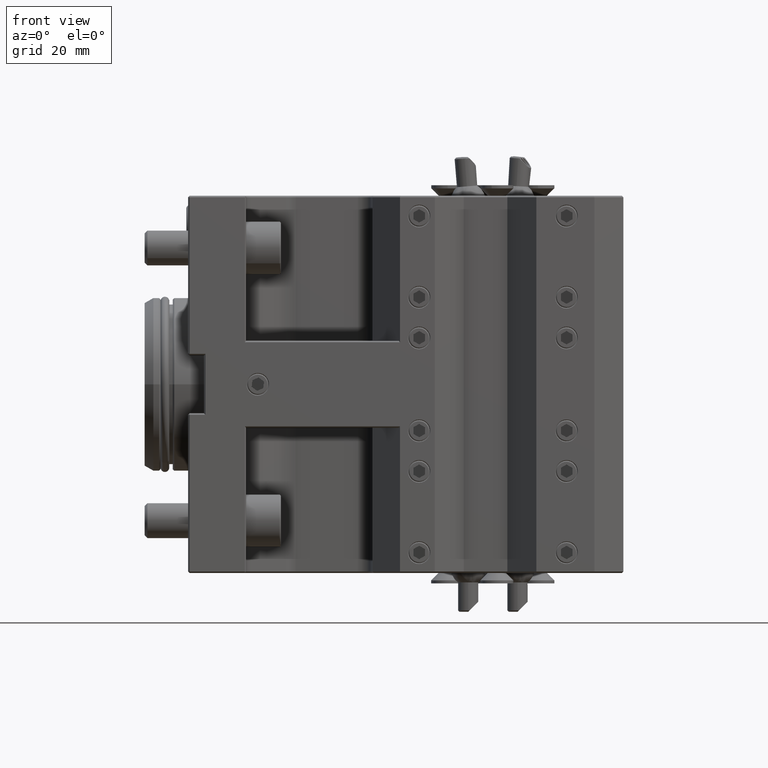
[diagram: clean part render]
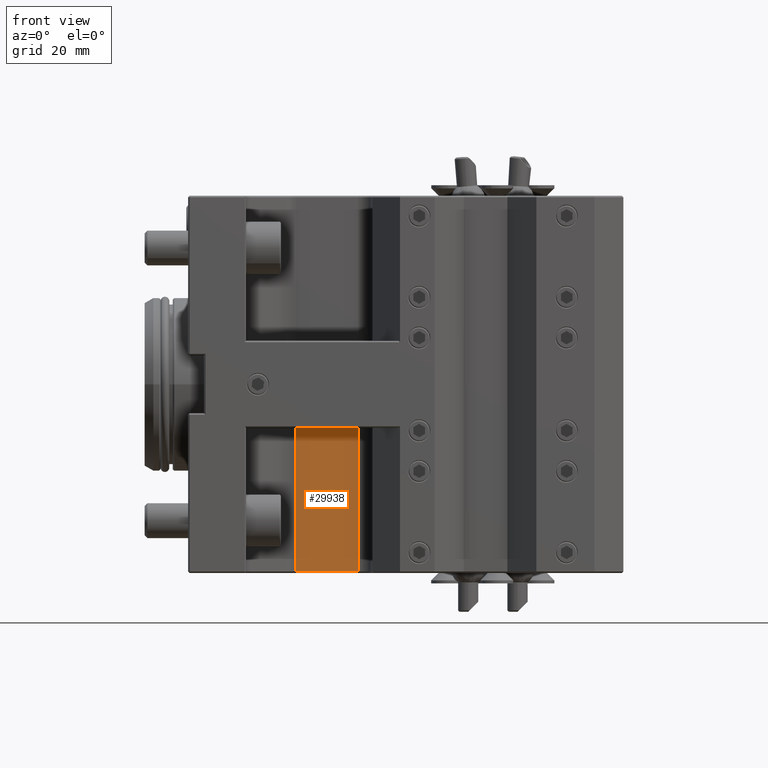
[diagram: same view with one face highlighted and labeled with its STEP entity id]
A machine part, front view. The second image highlights one B-rep face of the part: STEP entity #29938.
In plain terms, the highlighted planar face has unit normal (0, 1, -0).
Its self-contained STEP definition (entity closure, byte-faithful):
#972 = FACE_OUTER_BOUND ( 'NONE', #42390, .T. ) ;
#1022 = DIRECTION ( 'NONE',  ( 0.000000000000000000, -0.000000000000000000, -1.000000000000000000 ) ) ;
#1320 = VECTOR ( 'NONE', #1022, 1000.000000000000000 ) ;
#2898 = CARTESIAN_POINT ( 'NONE',  ( 37.07106781186544708, -16.00000000000112621, -15.00000000000000000 ) ) ;
#4082 = EDGE_CURVE ( 'NONE', #29817, #30892, #41056, .T. ) ;
#4427 = CARTESIAN_POINT ( 'NONE',  ( 58.49999999999995026, -16.00000000000120437, -15.00000000000000000 ) ) ;
#5830 = VECTOR ( 'NONE', #13603, 1000.000000000000000 ) ;
#6112 = LINE ( 'NONE', #20828, #5830 ) ;
#6330 = ORIENTED_EDGE ( 'NONE', *, *, #22110, .F. ) ;
#8019 = LINE ( 'NONE', #22745, #17040 ) ;
#8318 = ORIENTED_EDGE ( 'NONE', *, *, #4082, .F. ) ;
#9653 = LINE ( 'NONE', #32980, #44287 ) ;
#9898 = DIRECTION ( 'NONE',  ( 0.000000000000000000, -0.000000000000000000, -1.000000000000000000 ) ) ;
#11430 = EDGE_CURVE ( 'NONE', #30192, #30723, #9653, .T. ) ;
#12698 = ORIENTED_EDGE ( 'NONE', *, *, #46267, .T. ) ;
#13603 = DIRECTION ( 'NONE',  ( 1.000000000000000000, -3.977195734898019216E-15, 0.000000000000000000 ) ) ;
#16069 = CARTESIAN_POINT ( 'NONE',  ( 58.49999999999995026, -16.00000000000120437, -64.49999999999997158 ) ) ;
#16177 = DIRECTION ( 'NONE',  ( 3.977195734898019216E-15, 1.000000000000000000, -0.000000000000000000 ) ) ;
#16193 = AXIS2_PLACEMENT_3D ( 'NONE', #41715, #16177, #19095 ) ;
#17040 = VECTOR ( 'NONE', #30211, 1000.000000000000000 ) ;
#19095 = DIRECTION ( 'NONE',  ( 0.000000000000000000, 0.000000000000000000, 1.000000000000000000 ) ) ;
#19933 = ORIENTED_EDGE ( 'NONE', *, *, #11430, .T. ) ;
#20828 = CARTESIAN_POINT ( 'NONE',  ( 58.49999999999995026, -16.00000000000120437, -15.00000000000000000 ) ) ;
#22110 = EDGE_CURVE ( 'NONE', #30192, #29817, #6112, .T. ) ;
#22745 = CARTESIAN_POINT ( 'NONE',  ( 58.49999999999995026, -16.00000000000120437, -64.49999999999997158 ) ) ;
#29014 = CARTESIAN_POINT ( 'NONE',  ( 58.49999999999995026, -16.00000000000120437, -15.00000000000000000 ) ) ;
#29817 = VERTEX_POINT ( 'NONE', #29014 ) ;
#29938 = ADVANCED_FACE ( 'NONE', ( #972 ), #30891, .F. ) ;
#30192 = VERTEX_POINT ( 'NONE', #2898 ) ;
#30211 = DIRECTION ( 'NONE',  ( 1.000000000000000000, -3.977195734898019216E-15, 0.000000000000000000 ) ) ;
#30723 = VERTEX_POINT ( 'NONE', #33922 ) ;
#30891 = PLANE ( 'NONE',  #16193 ) ;
#30892 = VERTEX_POINT ( 'NONE', #16069 ) ;
#32980 = CARTESIAN_POINT ( 'NONE',  ( 37.07106781186544708, -16.00000000000112621, -15.00000000000000000 ) ) ;
#33922 = CARTESIAN_POINT ( 'NONE',  ( 37.07106781186544708, -16.00000000000112621, -64.49999999999997158 ) ) ;
#41056 = LINE ( 'NONE', #4427, #1320 ) ;
#41715 = CARTESIAN_POINT ( 'NONE',  ( 58.49999999999995026, -16.00000000000120437, -15.00000000000000000 ) ) ;
#42390 = EDGE_LOOP ( 'NONE', ( #19933, #12698, #8318, #6330 ) ) ;
#44287 = VECTOR ( 'NONE', #9898, 1000.000000000000000 ) ;
#46267 = EDGE_CURVE ( 'NONE', #30723, #30892, #8019, .T. ) ;